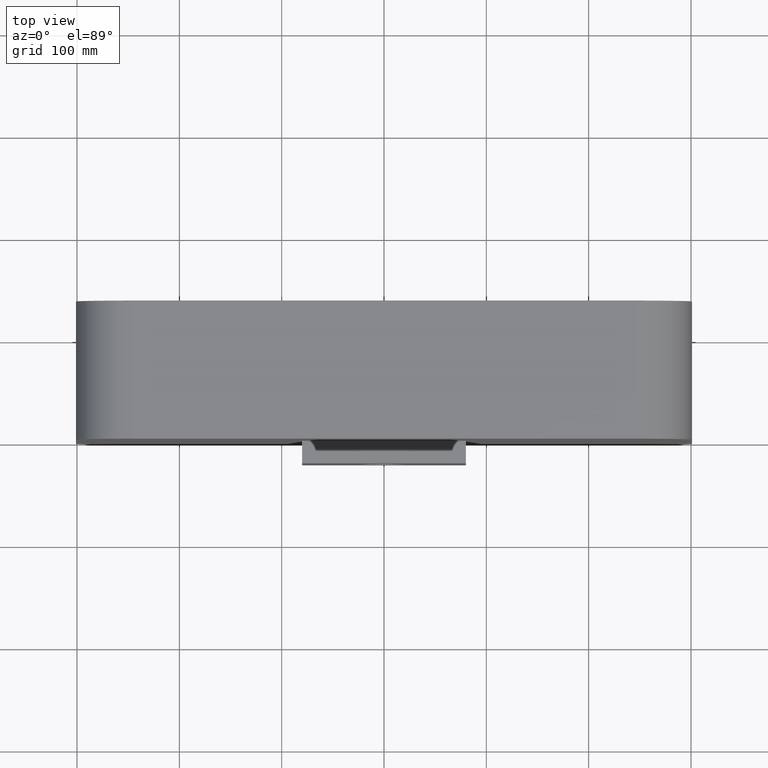
[diagram: clean part render]
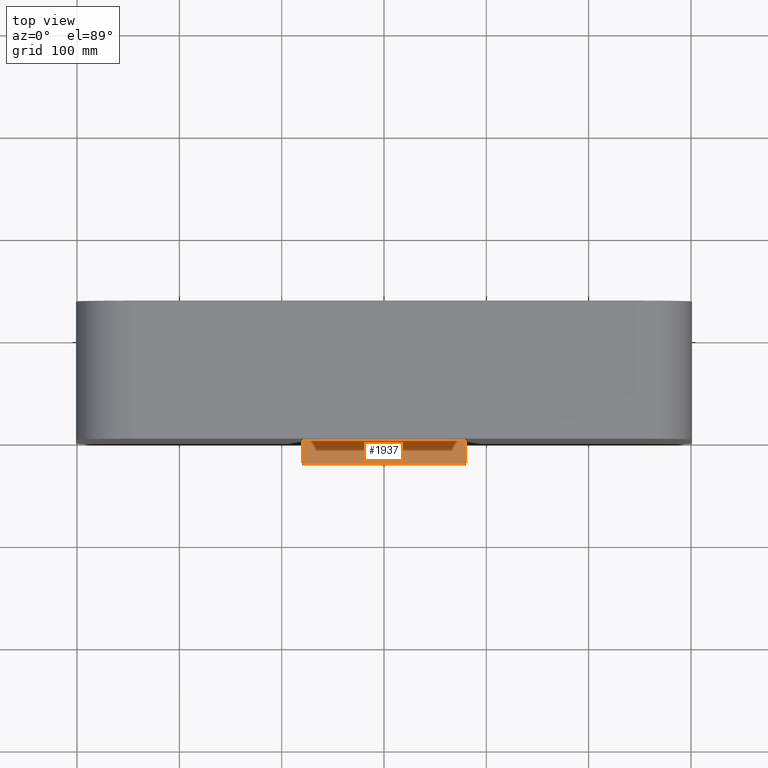
[diagram: same view with one face highlighted and labeled with its STEP entity id]
A machine part, top view. The second image highlights one B-rep face of the part: STEP entity #1937.
In plain terms, the highlighted planar face has unit normal (0, 0, -1).
Its self-contained STEP definition (entity closure, byte-faithful):
#356 = EDGE_CURVE ( 'NONE', #773, #810, #3695, .T. ) ;
#496 = VECTOR ( 'NONE', #2977, 1000.000000000000000 ) ;
#547 = LINE ( 'NONE', #2961, #496 ) ;
#701 = CARTESIAN_POINT ( 'NONE',  ( -79.99999999999998600, -22.00000000000000000, 62.49999999999998600 ) ) ;
#773 = VERTEX_POINT ( 'NONE', #3680 ) ;
#810 = VERTEX_POINT ( 'NONE', #2878 ) ;
#943 = EDGE_LOOP ( 'NONE', ( #1996, #2466, #1236, #2262 ) ) ;
#1031 = PLANE ( 'NONE',  #3890 ) ;
#1147 = VECTOR ( 'NONE', #1847, 1000.000000000000000 ) ;
#1159 = LINE ( 'NONE', #1888, #1147 ) ;
#1236 = ORIENTED_EDGE ( 'NONE', *, *, #2245, .F. ) ;
#1563 = FACE_OUTER_BOUND ( 'NONE', #943, .T. ) ;
#1713 = EDGE_CURVE ( 'NONE', #810, #3517, #1953, .T. ) ;
#1847 = DIRECTION ( 'NONE',  ( -1.000000000000000000, -0.0000000000000000000, -0.0000000000000000000 ) ) ;
#1888 = CARTESIAN_POINT ( 'NONE',  ( -79.99999999999998600, -22.00000000000000000, 62.49999999999998600 ) ) ;
#1919 = VECTOR ( 'NONE', #2635, 1000.000000000000000 ) ;
#1937 = ADVANCED_FACE ( 'NONE', ( #1563 ), #1031, .F. ) ;
#1953 = LINE ( 'NONE', #3453, #1919 ) ;
#1996 = ORIENTED_EDGE ( 'NONE', *, *, #1713, .T. ) ;
#2054 = CARTESIAN_POINT ( 'NONE',  ( -79.99999999999998600, -22.00000000000000000, 62.49999999999998600 ) ) ;
#2212 = DIRECTION ( 'NONE',  ( -0.0000000000000000000, 1.000000000000000000, -0.0000000000000000000 ) ) ;
#2245 = EDGE_CURVE ( 'NONE', #773, #3080, #1159, .T. ) ;
#2262 = ORIENTED_EDGE ( 'NONE', *, *, #356, .T. ) ;
#2466 = ORIENTED_EDGE ( 'NONE', *, *, #3753, .F. ) ;
#2618 = CARTESIAN_POINT ( 'NONE',  ( 80.00000000000001400, -22.00000000000000000, 62.49999999999998600 ) ) ;
#2635 = DIRECTION ( 'NONE',  ( -1.000000000000000000, -0.0000000000000000000, -0.0000000000000000000 ) ) ;
#2878 = CARTESIAN_POINT ( 'NONE',  ( 80.00000000000001400, 0.0000000000000000000, 62.49999999999997200 ) ) ;
#2961 = CARTESIAN_POINT ( 'NONE',  ( -79.99999999999998600, -22.00000000000000000, 62.49999999999998600 ) ) ;
#2977 = DIRECTION ( 'NONE',  ( -0.0000000000000000000, 1.000000000000000000, -0.0000000000000000000 ) ) ;
#3056 = DIRECTION ( 'NONE',  ( 0.0000000000000000000, 0.0000000000000000000, -1.000000000000000000 ) ) ;
#3080 = VERTEX_POINT ( 'NONE', #2054 ) ;
#3371 = DIRECTION ( 'NONE',  ( -1.000000000000000000, 0.0000000000000000000, -0.0000000000000000000 ) ) ;
#3453 = CARTESIAN_POINT ( 'NONE',  ( -79.99999999999998600, 0.0000000000000000000, 62.49999999999998600 ) ) ;
#3517 = VERTEX_POINT ( 'NONE', #3881 ) ;
#3680 = CARTESIAN_POINT ( 'NONE',  ( 80.00000000000001400, -22.00000000000000000, 62.49999999999998600 ) ) ;
#3695 = LINE ( 'NONE', #2618, #3725 ) ;
#3725 = VECTOR ( 'NONE', #2212, 1000.000000000000000 ) ;
#3753 = EDGE_CURVE ( 'NONE', #3080, #3517, #547, .T. ) ;
#3881 = CARTESIAN_POINT ( 'NONE',  ( -80.00000000000000000, 0.0000000000000000000, 62.49999999999998600 ) ) ;
#3890 = AXIS2_PLACEMENT_3D ( 'NONE', #701, #3056, #3371 ) ;